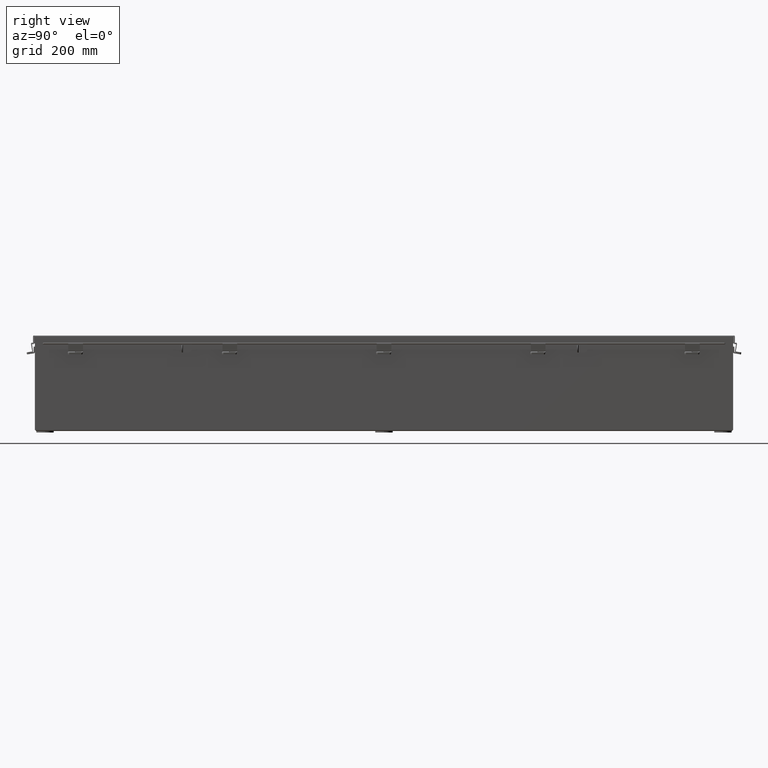
[diagram: clean part render]
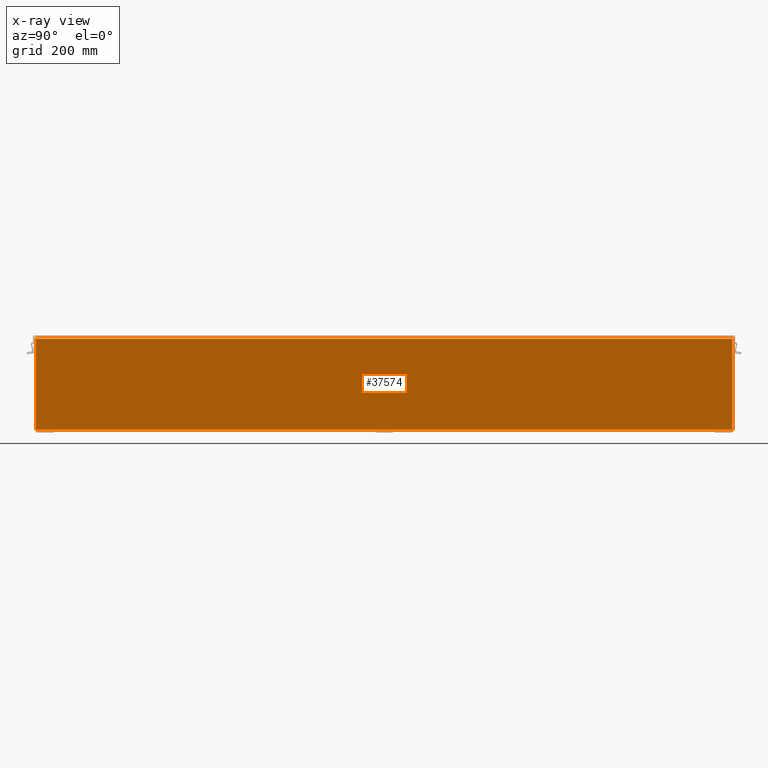
[diagram: x-ray — body ghosted, one internal face saturated and labeled with its STEP entity id]
A machine part, right view, then the same camera in x-ray: the body is ghosted and one INTERNAL B-rep face — a face not visible from any outside direction — is saturated and labeled: STEP entity #37574.
In plain terms, the highlighted planar face has unit normal (-1, 0, 0).
Its self-contained STEP definition (entity closure, byte-faithful):
#1173 = PLANE ( 'NONE',  #29886 ) ;
#2176 = VERTEX_POINT ( 'NONE', #20753 ) ;
#4566 = DIRECTION ( 'NONE',  ( 3.479795166820706300E-015, 0.0000000000000000000, 1.000000000000000000 ) ) ;
#6369 = VERTEX_POINT ( 'NONE', #11844 ) ;
#7063 = CARTESIAN_POINT ( 'NONE',  ( 3.925300000000026700, 29.92530000000001100, 7.850599999999999100 ) ) ;
#11844 = CARTESIAN_POINT ( 'NONE',  ( 3.925300000000026700, 29.92530000000001100, 7.837599999999999200 ) ) ;
#12130 = VERTEX_POINT ( 'NONE', #12835 ) ;
#12835 = CARTESIAN_POINT ( 'NONE',  ( 3.925300000000025300, -29.92529999999997900, 7.837599999999999200 ) ) ;
#13452 = ORIENTED_EDGE ( 'NONE', *, *, #36556, .F. ) ;
#15302 = DIRECTION ( 'NONE',  ( -3.479795166820706300E-015, -0.0000000000000000000, -1.000000000000000000 ) ) ;
#15870 = CARTESIAN_POINT ( 'NONE',  ( 3.925300000000025300, 29.92530000000000400, 7.837599999999999200 ) ) ;
#16423 = LINE ( 'NONE', #31087, #25376 ) ;
#16538 = CARTESIAN_POINT ( 'NONE',  ( 3.925299999999999100, -29.92529999999998600, 0.01299999999999929700 ) ) ;
#17225 = DIRECTION ( 'NONE',  ( 3.479795166820706300E-015, -1.113534453382626100E-015, 1.000000000000000000 ) ) ;
#17707 = EDGE_CURVE ( 'NONE', #12130, #34542, #35945, .T. ) ;
#17835 = VECTOR ( 'NONE', #17225, 39.37007874015748100 ) ;
#18017 = VECTOR ( 'NONE', #15302, 39.37007874015748100 ) ;
#18697 = ORIENTED_EDGE ( 'NONE', *, *, #17707, .F. ) ;
#19306 = EDGE_CURVE ( 'NONE', #2176, #6369, #43612, .T. ) ;
#20753 = CARTESIAN_POINT ( 'NONE',  ( 3.925299999999999100, 29.92530000000002100, 0.01299999999999929700 ) ) ;
#23939 = EDGE_LOOP ( 'NONE', ( #18697, #39009, #26555, #13452 ) ) ;
#24708 = DIRECTION ( 'NONE',  ( -1.000000000000000000, 0.0000000000000000000, 3.479795166820706300E-015 ) ) ;
#25376 = VECTOR ( 'NONE', #34485, 39.37007874015748100 ) ;
#25455 = CARTESIAN_POINT ( 'NONE',  ( 3.925299999999999100, -29.92529999999998600, 0.0000000000000000000 ) ) ;
#26555 = ORIENTED_EDGE ( 'NONE', *, *, #19306, .F. ) ;
#28079 = LINE ( 'NONE', #15870, #29129 ) ;
#29129 = VECTOR ( 'NONE', #36060, 39.37007874015748100 ) ;
#29886 = AXIS2_PLACEMENT_3D ( 'NONE', #31340, #24708, #4566 ) ;
#29997 = FACE_OUTER_BOUND ( 'NONE', #23939, .T. ) ;
#30029 = EDGE_CURVE ( 'NONE', #6369, #12130, #28079, .T. ) ;
#31087 = CARTESIAN_POINT ( 'NONE',  ( 3.925299999999999100, -29.92529999999998600, 0.01300000000000011600 ) ) ;
#31340 = CARTESIAN_POINT ( 'NONE',  ( 3.925299999999999100, 0.0000000000000000000, -1.391535071772734100E-014 ) ) ;
#34485 = DIRECTION ( 'NONE',  ( -9.530001147699521900E-032, 1.000000000000000000, -2.738667275179460900E-017 ) ) ;
#34542 = VERTEX_POINT ( 'NONE', #16538 ) ;
#35945 = LINE ( 'NONE', #25455, #18017 ) ;
#36060 = DIRECTION ( 'NONE',  ( -0.0000000000000000000, -1.000000000000000000, -0.0000000000000000000 ) ) ;
#36556 = EDGE_CURVE ( 'NONE', #34542, #2176, #16423, .T. ) ;
#37574 = ADVANCED_FACE ( 'NONE', ( #29997 ), #1173, .T. ) ;
#39009 = ORIENTED_EDGE ( 'NONE', *, *, #30029, .F. ) ;
#43612 = LINE ( 'NONE', #7063, #17835 ) ;